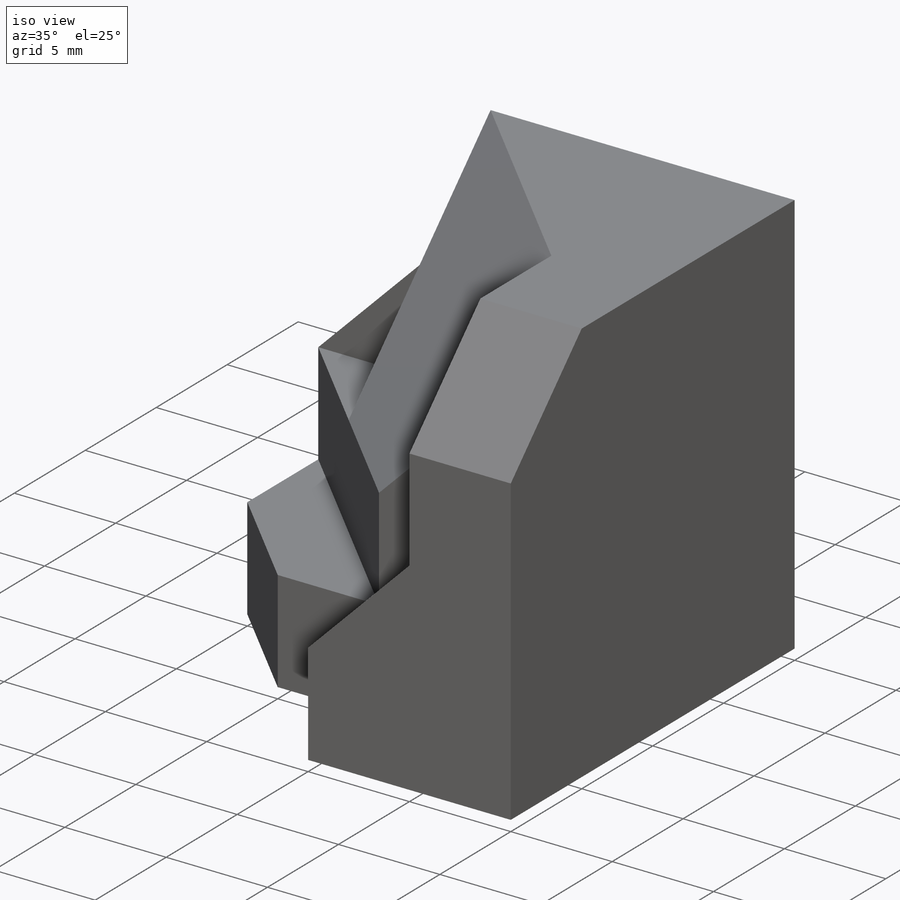
[diagram: iso view]
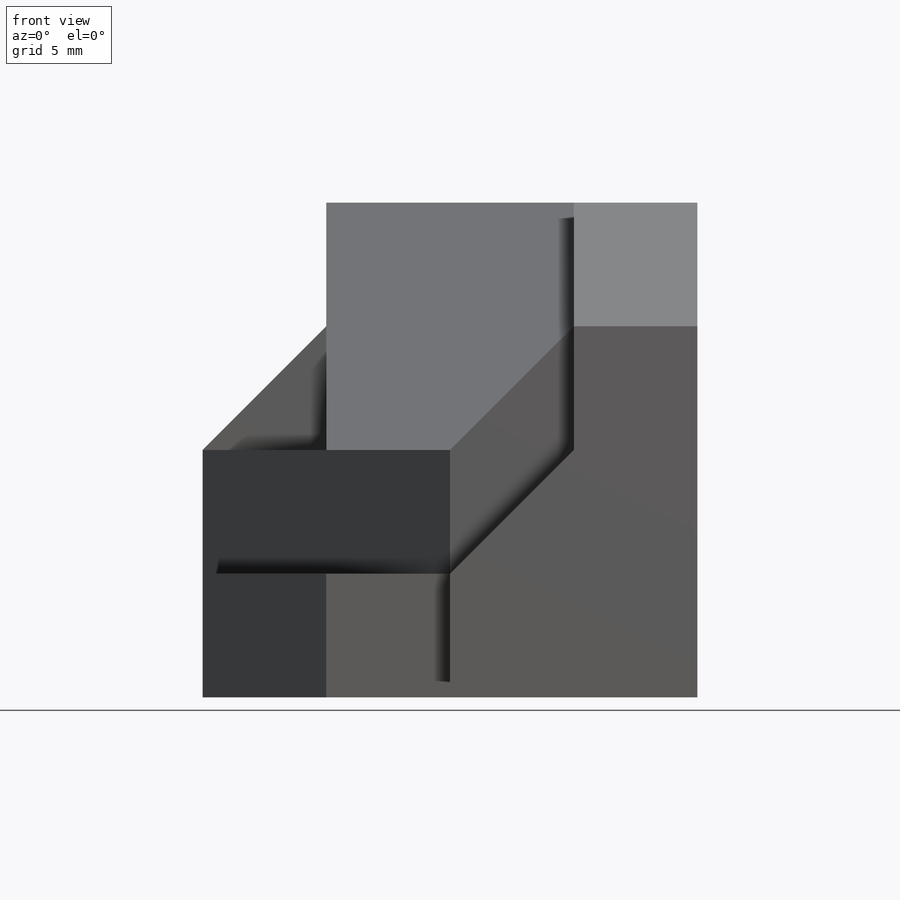
[diagram: front view]
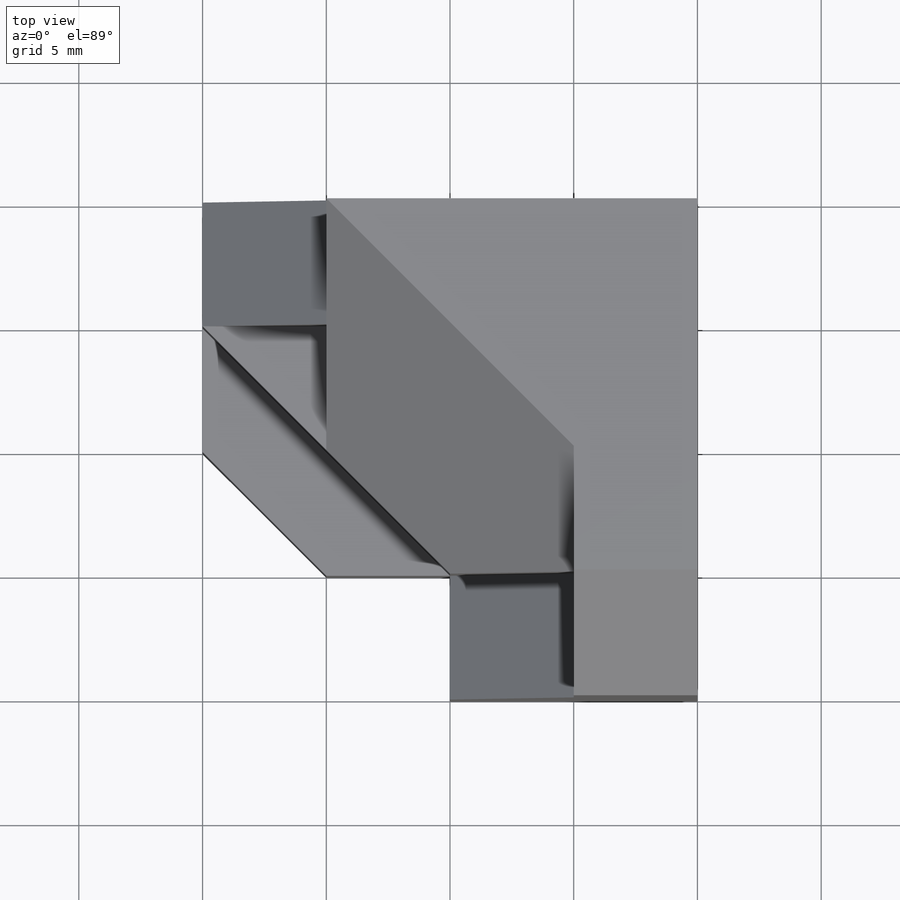
[diagram: top view]
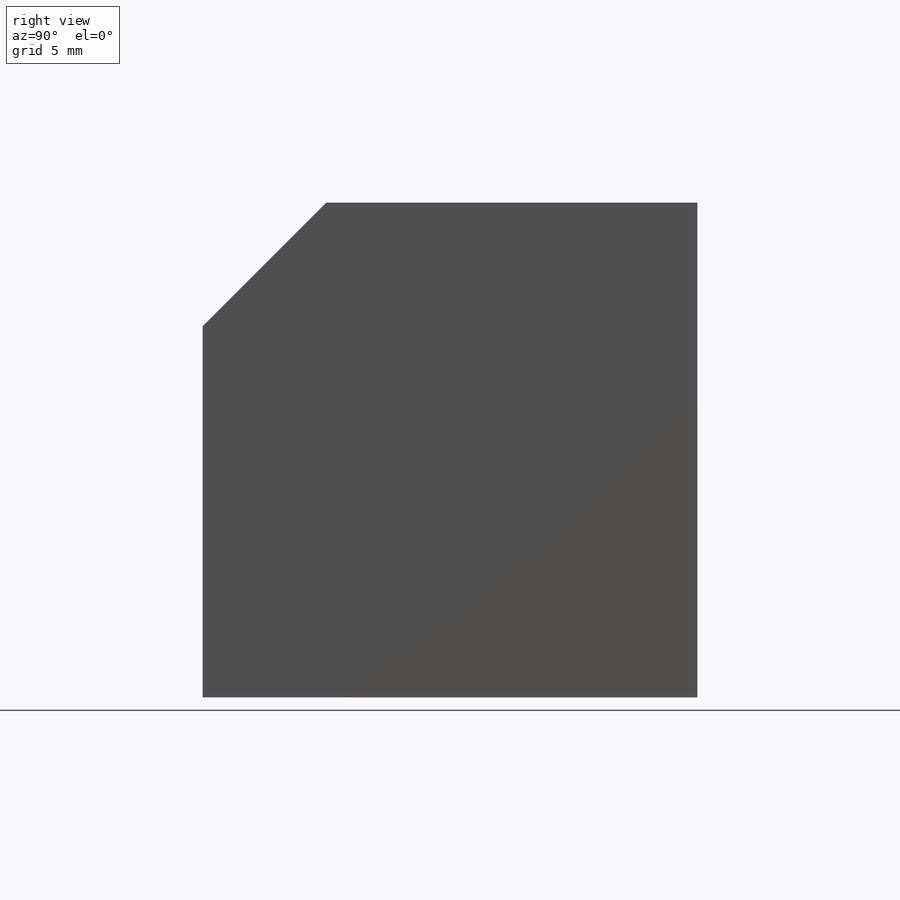
[diagram: right view]
SOLIDWORKS PART (.sldprt)
format: sldprt  version: not decoded by parser v0  size: 281,088 bytes
history: native  units: mm
features: sketch x11, extrude x7, cut_extrude x4, material x1, plane x1 (+13 scaffold rows collapsed)
feature tree (37):
  scaffold x13  (default folders/planes/origin — collapsed)
  material  "Material <not specified>"
  sketch  "Sketch1"  dims[D1=5.0mm D2=5.0mm D3=15.0mm D4=15.0mm]
  extrude  "Boss-Extrude1"  Depth=20mm
  sketch  "Sketch2"
  extrude  "Boss-Extrude2"  Depth=5mm
  sketch  "Sketch3"  dims[D1=5.0mm D2=5.0mm]
  cut_extrude  "Cut-Extrude1"  Depth=5mm
  sketch  "Sketch4"  dims[D1=5.0mm D2=10.0mm]
  extrude  "Boss-Extrude3"  Depth=5mm
  sketch  "Sketch5"  dims[D1=5.0mm]
  cut_extrude  "Cut-Extrude2"  Depth=5mm
  plane  "Plane1"
  sketch  "Sketch14"  dims[c1.D1=10.0mm c1.D2=~7.048828mm c2.D2=~134.818938deg c3.D2=~4.968498mm c3.D1=10.0mm]
  extrude  "Boss-Extrude31"  Depth=20mm
  sketch  "3DSketch7"  dims[D1=5.0mm D2=5.0mm D3=5.0mm D4=10.0mm D5=10.0mm]
  cut_extrude  "Cut-Extrude11"  Depth=25mm
  sketch  "Sketch24"  dims[D1=5.0mm D2=15.0mm]
  extrude  "Boss-Extrude32"  Depth=5mm
  sketch  "Sketch25"  dims[D1=5.0mm]
  cut_extrude  "Cut-Extrude12"  Depth=5mm
  sketch  "Sketch26"  dims[D1=5.0mm D2=5.0mm]
  extrude  "Boss-Extrude33"  Depth=5mm
  sketch  "Sketch27"
  extrude  "Boss-Extrude34"  Depth=5mm
decode coverage: 20 of 22 modeling features carry decoded parameters
note: ~ marks probable driven/reference dimensions
note: suppression state not decoded; provenance and decode notes live in map.json
